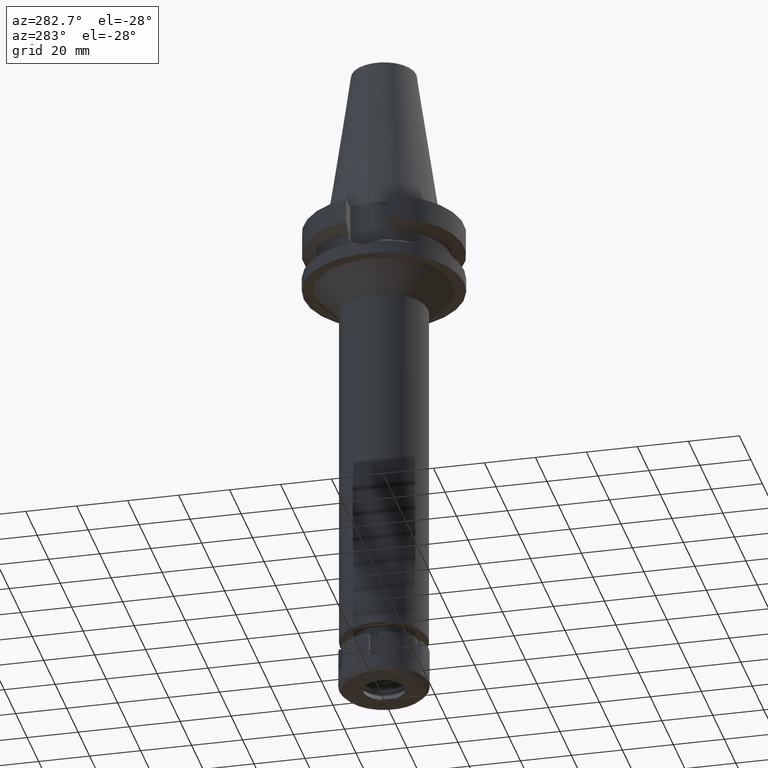
[diagram: clean part render]
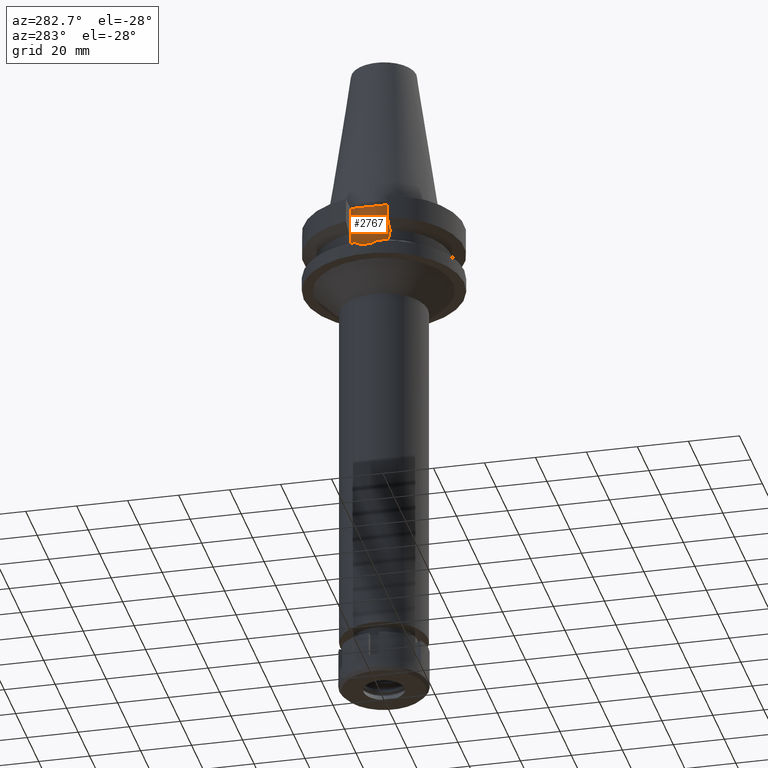
[diagram: same view with one face highlighted and labeled with its STEP entity id]
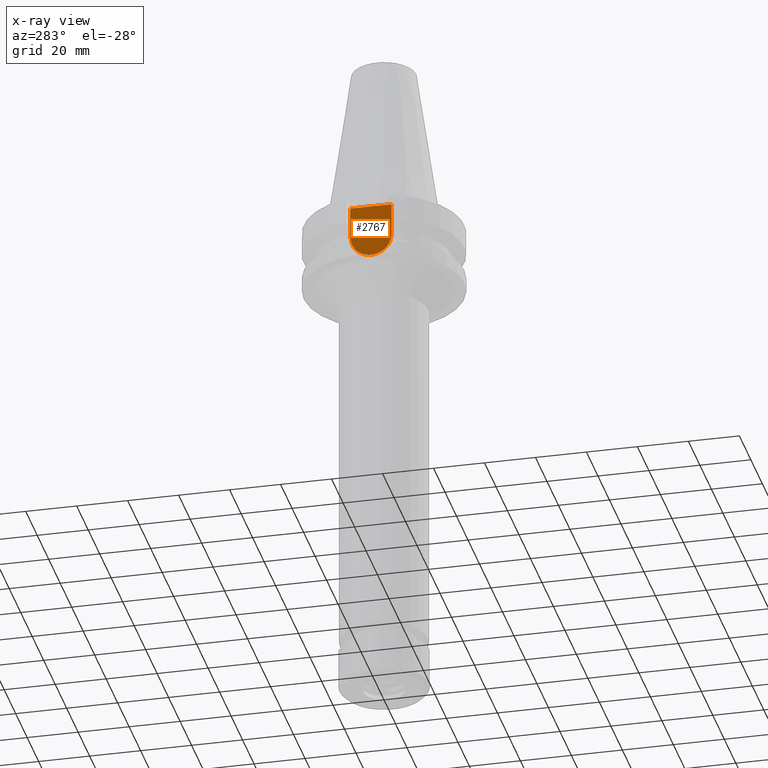
[diagram: x-ray of the same camera — body ghosted, the highlighted face saturated]
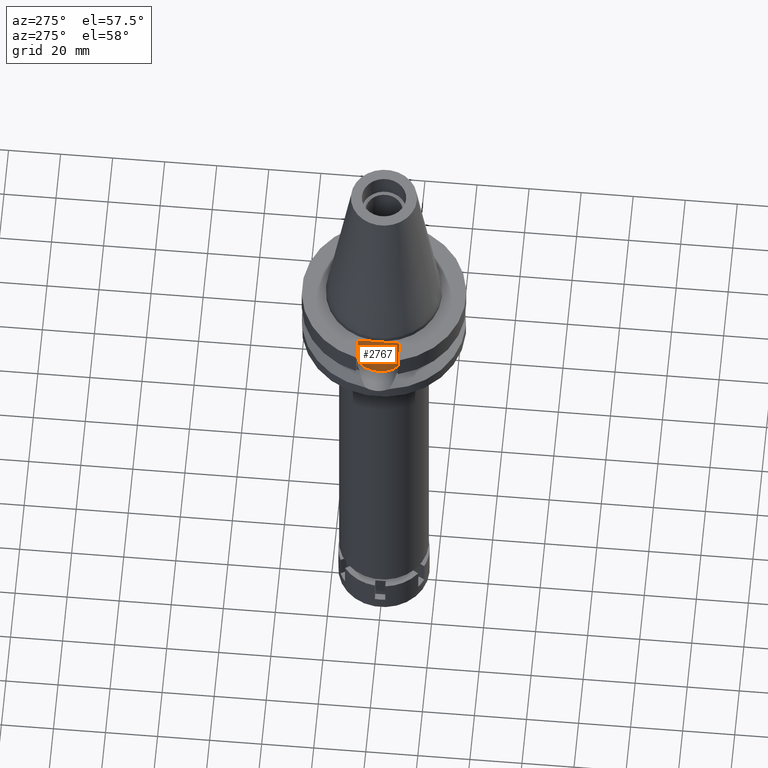
[diagram: same view with one face highlighted and labeled with its STEP entity id]
A machine part, auxiliary view. The second image highlights one B-rep face of the part: STEP entity #2767.
The next image is the same camera in x-ray: the body ghosted, the highlighted face saturated — about 0% of this face is hidden behind the body in this view.
A second angle (auxiliary view) of the same face is appended — the face is thin or edge-on in the first view.
In plain terms, the highlighted planar face has unit normal (-1, 0, 0).
Its self-contained STEP definition (entity closure, byte-faithful):
#9 = EDGE_CURVE ( 'NONE', #645, #2483, #561, .T. ) ;
#186 = VERTEX_POINT ( 'NONE', #1799 ) ;
#245 = DIRECTION ( 'NONE',  ( 0.0000000000000000000, 0.0000000000000000000, -1.000000000000000000 ) ) ;
#489 = LINE ( 'NONE', #1926, #3408 ) ;
#561 = LINE ( 'NONE', #3013, #2404 ) ;
#645 = VERTEX_POINT ( 'NONE', #2570 ) ;
#662 = ORIENTED_EDGE ( 'NONE', *, *, #1337, .F. ) ;
#1087 = ORIENTED_EDGE ( 'NONE', *, *, #9, .F. ) ;
#1145 = CARTESIAN_POINT ( 'NONE',  ( -22.50000000000000000, 8.050000000000000711, -14.94999999999999929 ) ) ;
#1171 = VECTOR ( 'NONE', #3048, 1000.000000000000000 ) ;
#1212 = VERTEX_POINT ( 'NONE', #1858 ) ;
#1239 = FACE_OUTER_BOUND ( 'NONE', #1686, .T. ) ;
#1281 = CARTESIAN_POINT ( 'NONE',  ( -22.50000000000000000, -8.050000000000000711, -14.94999999999999929 ) ) ;
#1337 = EDGE_CURVE ( 'NONE', #1212, #186, #1397, .T. ) ;
#1397 = LINE ( 'NONE', #1145, #1171 ) ;
#1473 = PLANE ( 'NONE',  #3518 ) ;
#1654 = DIRECTION ( 'NONE',  ( 0.0000000000000000000, 1.000000000000000000, 0.0000000000000000000 ) ) ;
#1686 = EDGE_LOOP ( 'NONE', ( #662, #2671, #1087, #2898 ) ) ;
#1799 = CARTESIAN_POINT ( 'NONE',  ( -22.50000000000000000, 8.050000000000000711, -2.000000000000000000 ) ) ;
#1858 = CARTESIAN_POINT ( 'NONE',  ( -22.50000000000000000, 8.050000000000000711, -14.94999999999999929 ) ) ;
#1880 = DIRECTION ( 'NONE',  ( 0.0000000000000000000, -1.000000000000000000, 1.917893035551997704E-14 ) ) ;
#1926 = CARTESIAN_POINT ( 'NONE',  ( -22.50000000000000000, -8.050000000000000711, -2.000000000000000000 ) ) ;
#1945 = EDGE_CURVE ( 'NONE', #2483, #1212, #2587, .T. ) ;
#2158 = CARTESIAN_POINT ( 'NONE',  ( -22.50000000000000000, 1.807578675540999863E-14, -14.94999999999999929 ) ) ;
#2404 = VECTOR ( 'NONE', #245, 1000.000000000000000 ) ;
#2483 = VERTEX_POINT ( 'NONE', #1281 ) ;
#2570 = CARTESIAN_POINT ( 'NONE',  ( -22.50000000000000000, -8.050000000000000711, -2.000000000000000000 ) ) ;
#2587 = CIRCLE ( 'NONE', #3049, 8.050000000000000711 ) ;
#2597 = DIRECTION ( 'NONE',  ( 0.0000000000000000000, 0.0000000000000000000, 1.000000000000000000 ) ) ;
#2628 = DIRECTION ( 'NONE',  ( -1.000000000000000000, 0.0000000000000000000, 0.0000000000000000000 ) ) ;
#2671 = ORIENTED_EDGE ( 'NONE', *, *, #1945, .F. ) ;
#2767 = ADVANCED_FACE ( 'NONE', ( #1239 ), #1473, .T. ) ;
#2898 = ORIENTED_EDGE ( 'NONE', *, *, #3039, .T. ) ;
#2953 = DIRECTION ( 'NONE',  ( 1.000000000000000000, 0.0000000000000000000, 0.0000000000000000000 ) ) ;
#3013 = CARTESIAN_POINT ( 'NONE',  ( -22.50000000000000000, -8.050000000000000711, -2.000000000000000000 ) ) ;
#3039 = EDGE_CURVE ( 'NONE', #645, #186, #489, .T. ) ;
#3048 = DIRECTION ( 'NONE',  ( 0.0000000000000000000, 0.0000000000000000000, 1.000000000000000000 ) ) ;
#3049 = AXIS2_PLACEMENT_3D ( 'NONE', #2158, #2953, #1880 ) ;
#3181 = CARTESIAN_POINT ( 'NONE',  ( -22.50000000000000000, 2.173748068486999793E-14, 0.0000000000000000000 ) ) ;
#3408 = VECTOR ( 'NONE', #1654, 1000.000000000000000 ) ;
#3518 = AXIS2_PLACEMENT_3D ( 'NONE', #3181, #2628, #2597 ) ;